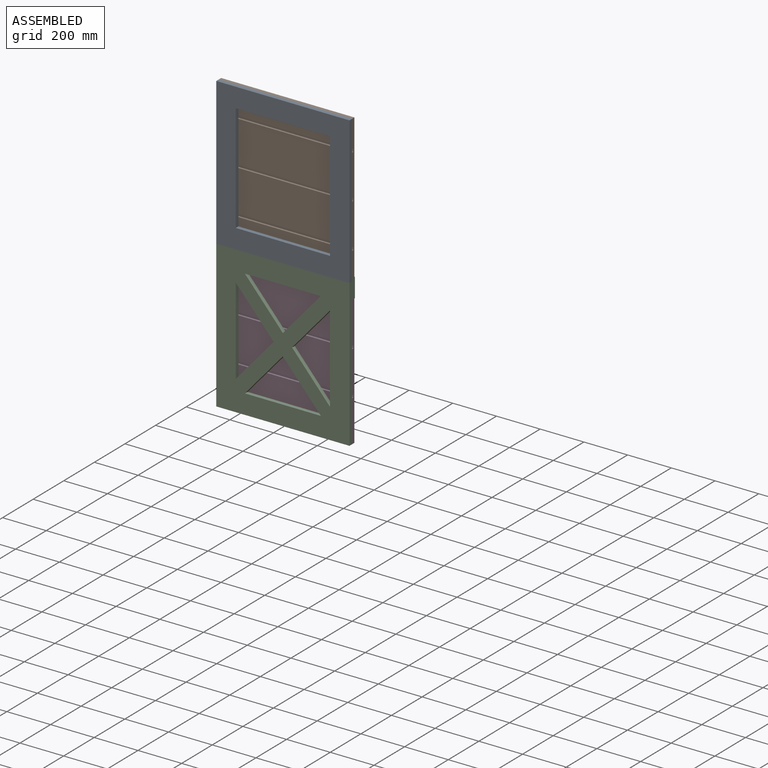
[diagram: assembled view]
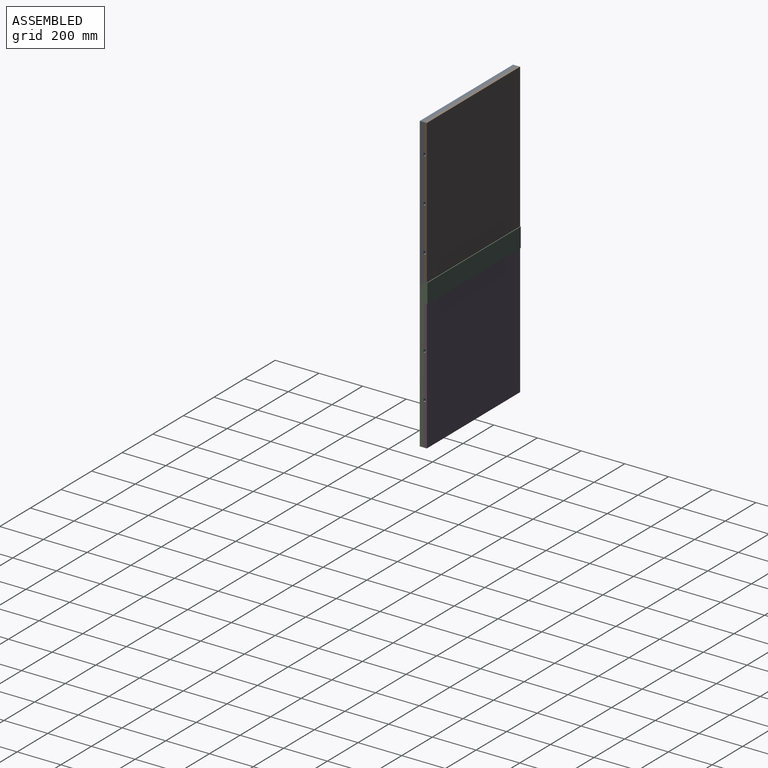
[diagram: assembled view, second angle]
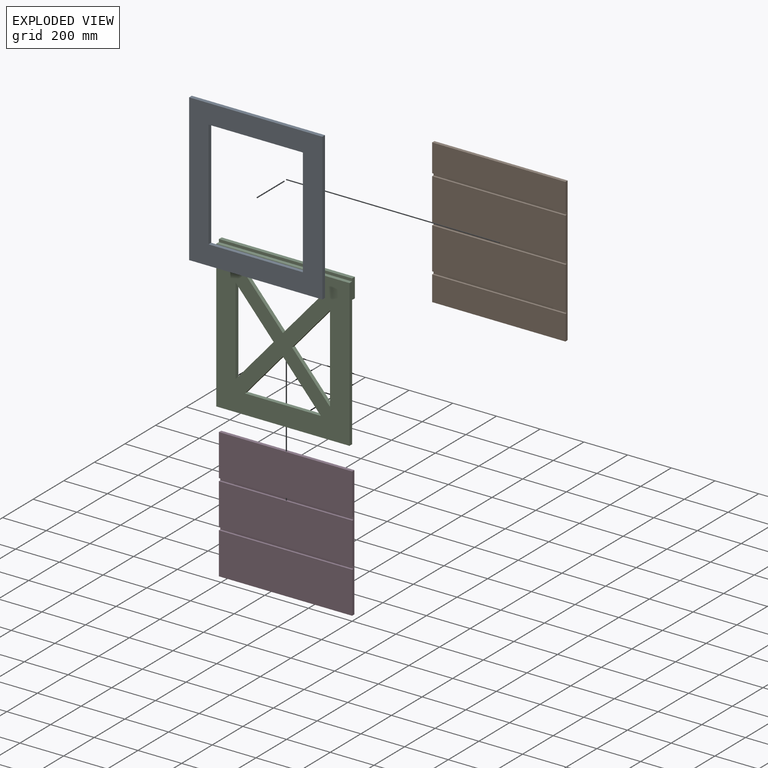
[diagram: exploded view]
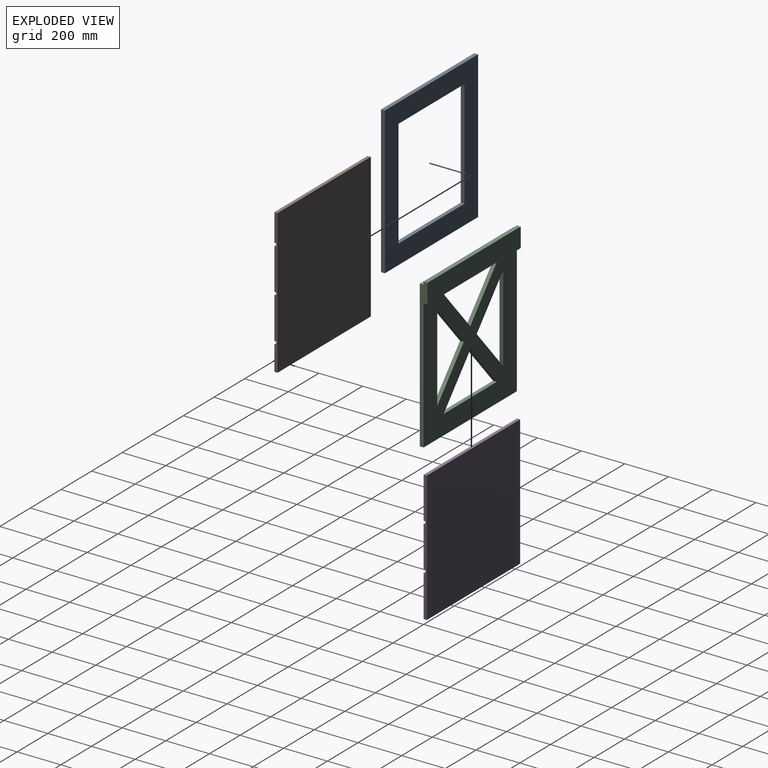
[diagram: exploded view, second angle]
ASSEMBLY  parts=4 mates=9
PART A: 10 faces, bbox 609.6x17.5x673.1 mm
  f0: plane 609.6x17.48mm, normal (0,0,1), area 10652.9mm2, adj f1,f7,f8,f9
  f1: plane 673.1x17.48mm, normal (-1,0,0), area 11762.6mm2, adj f0,f2,f8,f9
  f2: plane 609.6x17.48mm, normal (0,0,-1), area 10652.9mm2, adj f1,f7,f8,f9
  f3: plane 495.3x17.48mm, normal (1,0,0), area 8655.5mm2, adj f4,f6,f8,f9
  f4: plane 431.8x17.48mm, normal (0,0,-1), area 7545.8mm2, adj f3,f5,f8,f9
  f5: plane 495.3x17.48mm, normal (-1,0,0), area 8655.5mm2, adj f4,f6,f8,f9
  f6: plane 431.8x17.48mm, normal (0,0,1), area 7545.8mm2, adj f3,f5,f8,f9
  f7: plane 673.1x17.48mm, normal (1,0,0), area 11762.6mm2, adj f0,f2,f8,f9
  f8: plane 673.1x609.6mm, normal (0,-1,0), area 196451.2mm2, adj f0,f1,f2,f3,f4,f5,f6,f7
  f9: plane 673.1x609.6mm, normal (0,1,0), area 196451.2mm2, adj f0,f1,f2,f3,f4,f5,f6,f7
PART B: 18 faces, bbox 609.6x14.7x660.4 mm
  f0: plane 609.6x127mm, normal (0,-1,0), area 77419.2mm2, adj f3,f4,f6,f15
  f1: plane 609.6x190.5mm, normal (0,-1,0), area 116128.8mm2, adj f4,f6,f12,f16
  f2: plane 609.6x190.5mm, normal (0,-1,0), area 116128.8mm2, adj f4,f6,f9,f13
  f3: plane 609.6x14.68mm, normal (0,0,1), area 8949.7mm2, adj f0,f4,f6,f7
  f4: plane 660.4x14.68mm, normal (-1,0,0), area 9356.8mm2, adj f0,f1,f2,f3,f5,f7,f8,f9
  f5: plane 609.6x14.68mm, normal (0,0,-1), area 8949.7mm2, adj f4,f6,f7,f8
  f6: plane 660.4x14.68mm, normal (1,0,0), area 9356.8mm2, adj f0,f1,f2,f3,f5,f7,f8,f9
  f7: plane 660.4x609.6mm, normal (0,1,0), area 402579.8mm2, adj f3,f4,f5,f6
  f8: plane 609.6x114.3mm, normal (0,-1,0), area 69677.3mm2, adj f4,f5,f6,f10
  f9: plane 609.6x8.89mm, normal (0,0,-1), area 5419.3mm2, adj f2,f4,f6,f11
  f10: plane 609.6x8.89mm, normal (0,0,1), area 5419.3mm2, adj f4,f6,f8,f11
  f11: plane 609.6x12.7mm, normal (0,-1,0), area 7741.9mm2, adj f4,f6,f9,f10
  f12: plane 609.6x8.89mm, normal (0,0,-1), area 5419.3mm2, adj f1,f4,f6,f14
  f13: plane 609.6x8.89mm, normal (0,0,1), area 5419.3mm2, adj f2,f4,f6,f14
  f14: plane 609.6x12.7mm, normal (0,-1,0), area 7741.9mm2, adj f4,f6,f12,f13
  f15: plane 609.6x8.89mm, normal (0,0,-1), area 5419.3mm2, adj f0,f4,f6,f17
  f16: plane 609.6x8.89mm, normal (0,0,1), area 5419.3mm2, adj f1,f4,f6,f17
  f17: plane 609.6x12.7mm, normal (0,-1,0), area 7741.9mm2, adj f4,f6,f15,f16
PART C: 22 faces, bbox 609.6x35x685.8 mm
  f0: plane 398.67x17.48mm, normal (1,0,0), area 6966.8mm2, adj f4,f9,f15,f16
  f1: plane 347.56x17.48mm, normal (0,0,-1), area 6073.6mm2, adj f4,f9,f14,f21
  f2: plane 398.67x17.48mm, normal (-1,0,0), area 6966.8mm2, adj f4,f9,f19,f20
  f3: plane 347.56x17.48mm, normal (0,0,1), area 6073.6mm2, adj f4,f9,f17,f18
  f4: plane 609.6x596.9mm, normal (0,1,0), area 225310.2mm2, adj f0,f1,f2,f3,f6,f7,f8,f11
  f5: plane 609.6x17.48mm, normal (0,0,1), area 10652.9mm2, adj f6,f8,f9,f10
  f6: plane 685.8x34.95mm, normal (-1,0,0), area 13316.1mm2, adj f4,f5,f7,f9,f10,f11,f12,f13
  f7: plane 609.6x17.48mm, normal (0,0,-1), area 10652.9mm2, adj f4,f6,f8,f9
  f8: plane 685.8x34.95mm, normal (1,0,0), area 13316.1mm2, adj f4,f5,f7,f9,f10,f11,f12,f13
  f9: plane 673.1x609.6mm, normal (0,-1,0), area 271761.7mm2, adj f0,f1,f2,f3,f5,f6,f7,f8
  f10: plane 609.6x12.7mm, normal (0,-1,0), area 7741.9mm2, adj f5,f6,f8,f12
  f11: plane 609.6x17.48mm, normal (0,0,-1), area 10652.9mm2, adj f4,f6,f8,f13
  f12: plane 609.6x17.48mm, normal (0,0,1), area 10652.9mm2, adj f6,f8,f10,f13
  f13: plane 609.6x88.9mm, normal (0,1,0), area 54193.4mm2, adj f6,f8,f11,f12
  f14: plane 199.33x173.78mm, normal (0.75,0,0.66), area 4621.3mm2, adj f1,f4,f9,f21
  f15: plane 199.33x173.78mm, normal (-0.75,0,-0.66), area 4621.3mm2, adj f0,f4,f9,f16
  f16: plane 199.33x173.78mm, normal (-0.75,0,0.66), area 4621.3mm2, adj f0,f4,f9,f15
  f17: plane 199.33x173.78mm, normal (0.75,0,-0.66), area 4621.3mm2, adj f3,f4,f9,f18
  f18: plane 199.33x173.78mm, normal (-0.75,0,-0.66), area 4621.3mm2, adj f3,f4,f9,f17
  f19: plane 199.33x173.78mm, normal (0.75,0,0.66), area 4621.3mm2, adj f2,f4,f9,f20
  f20: plane 199.33x173.78mm, normal (0.75,0,-0.66), area 4621.3mm2, adj f2,f4,f9,f19
  f21: plane 199.33x173.78mm, normal (-0.75,0,0.66), area 4621.3mm2, adj f1,f4,f9,f14
PART D: 14 faces, bbox 609.6x14.7x596.9 mm
  f0: plane 609.6x190.5mm, normal (0,-1,0), area 116128.8mm2, adj f1,f2,f4,f11
  f1: plane 596.9x14.68mm, normal (1,0,0), area 8537.4mm2, adj f0,f3,f4,f5,f6,f7,f8,f9
  f2: plane 596.9x14.68mm, normal (-1,0,0), area 8537.4mm2, adj f0,f3,f4,f5,f6,f7,f8,f9
  f3: plane 609.6x190.5mm, normal (0,-1,0), area 116128.8mm2, adj f1,f2,f8,f12
  f4: plane 609.6x14.68mm, normal (0,0,1), area 8949.7mm2, adj f0,f1,f2,f6
  f5: plane 609.6x14.68mm, normal (0,0,-1), area 8949.7mm2, adj f1,f2,f6,f7
  f6: plane 609.6x596.9mm, normal (0,1,0), area 363870.2mm2, adj f1,f2,f4,f5
  f7: plane 609.6x190.5mm, normal (0,-1,0), area 116128.8mm2, adj f1,f2,f5,f9
  f8: plane 609.6x8.89mm, normal (0,0,-1), area 5419.3mm2, adj f1,f2,f3,f10
  f9: plane 609.6x8.89mm, normal (0,0,1), area 5419.3mm2, adj f1,f2,f7,f10
  f10: plane 609.6x12.7mm, normal (0,-1,0), area 7741.9mm2, adj f1,f2,f8,f9
  f11: plane 609.6x8.89mm, normal (0,0,-1), area 5419.3mm2, adj f0,f1,f2,f13
  f12: plane 609.6x8.89mm, normal (0,0,1), area 5419.3mm2, adj f1,f2,f3,f13
  f13: plane 609.6x12.7mm, normal (0,-1,0), area 7741.9mm2, adj f1,f2,f11,f12
PLACE A t=(-304.8,0,0)mm
PLACE B t=(-304.8,0,0)mm
PLACE C t=(-304.8,0,0)mm
PLACE D t=(-304.8,0,0)mm
MATE planar B.f6 <-> A.f7  axis (1,0,0) through (0,7.45,1016.23)mm
MATE planar C.f4 <-> D.f0  axis (0,1,0) through (-304.8,0,275.02)mm
MATE planar A.f9 <-> B.f1  axis (0,1,0) through (-304.8,0,1009.65)mm
MATE planar A.f2 <-> C.f5  axis (0,0,-1) through (-304.8,-8.74,673.1)mm
MATE planar C.f8 <-> A.f7  axis (1,0,0) through (0,8.74,596.9)mm
MATE planar A.f8 <-> C.f9  axis (0,-1,0) through (-88.9,-17.48,762)mm
MATE planar A.f0 <-> B.f3  axis (0,0,1) through (0,-8.74,1346.2)mm
MATE planar C.f11 <-> D.f4  axis (0,0,-1) through (-609.6,17.48,596.9)mm
MATE planar D.f2 <-> C.f6  axis (-1,0,0) through (-609.6,7.42,298.45)mm
